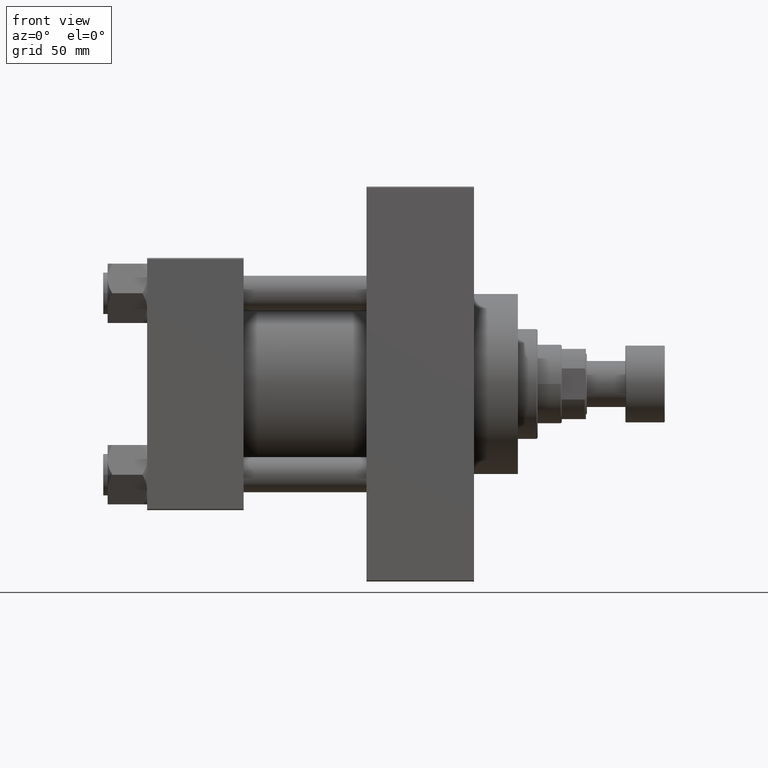
[diagram: clean part render]
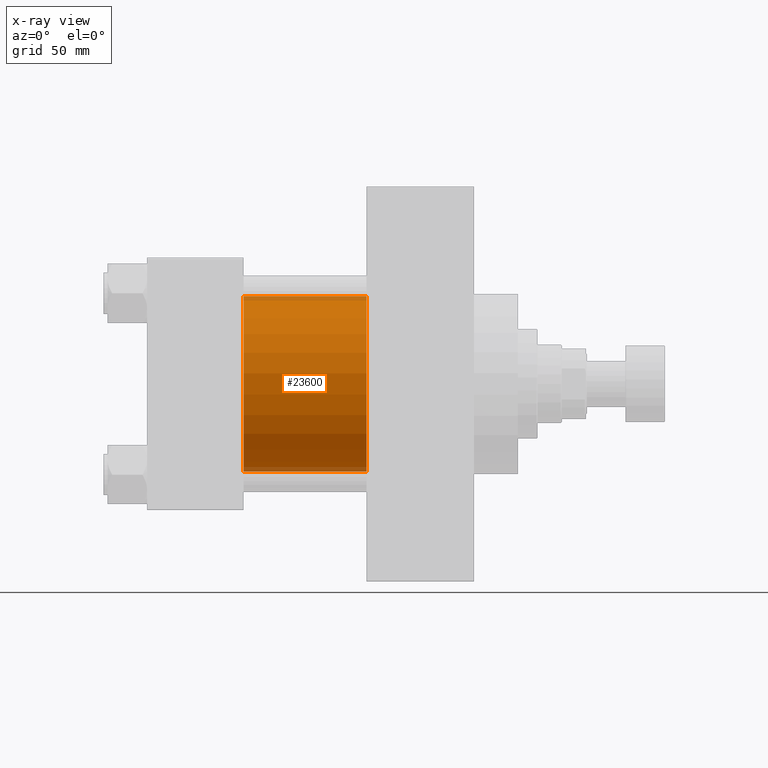
[diagram: x-ray — body ghosted, one internal face saturated and labeled with its STEP entity id]
A machine part, front view, then the same camera in x-ray: the body is ghosted and one INTERNAL B-rep face — a face not visible from any outside direction — is saturated and labeled: STEP entity #23600.
In plain terms, the highlighted cylindrical surface (partial cylindrical patch) has radius 40 mm, axis along (-1, -0, -0).
Its self-contained STEP definition (entity closure, byte-faithful):
#112 = CARTESIAN_POINT ( 'NONE',  ( 44.00000000000000000, 2.296501982624201990E-15, -40.00000000000000000 ) ) ;
#1426 = DIRECTION ( 'NONE',  ( 0.000000000000000000, 0.000000000000000000, -1.000000000000000000 ) ) ;
#2739 = AXIS2_PLACEMENT_3D ( 'NONE', #19206, #8962, #1426 ) ;
#5710 = ORIENTED_EDGE ( 'NONE', *, *, #14398, .T. ) ;
#5922 = CARTESIAN_POINT ( 'NONE',  ( 100.0000000000000000, 2.296501982624201990E-15, -40.00000000000000000 ) ) ;
#6772 = VERTEX_POINT ( 'NONE', #44596 ) ;
#7988 = VERTEX_POINT ( 'NONE', #22363 ) ;
#8962 = DIRECTION ( 'NONE',  ( 1.000000000000000000, 0.000000000000000000, 0.000000000000000000 ) ) ;
#11289 = CIRCLE ( 'NONE', #2739, 40.00000000000000000 ) ;
#12299 = CARTESIAN_POINT ( 'NONE',  ( 44.00000000000000000, -2.602085213965210642E-15, 0.000000000000000000 ) ) ;
#13151 = DIRECTION ( 'NONE',  ( -1.000000000000000000, -0.000000000000000000, -0.000000000000000000 ) ) ;
#14398 = EDGE_CURVE ( 'NONE', #45414, #23327, #20506, .T. ) ;
#16075 = FACE_OUTER_BOUND ( 'NONE', #40425, .T. ) ;
#17129 = EDGE_CURVE ( 'NONE', #7988, #23327, #37808, .T. ) ;
#19206 = CARTESIAN_POINT ( 'NONE',  ( 100.0000000000000000, -2.602085213965210642E-15, 0.000000000000000000 ) ) ;
#19218 = ORIENTED_EDGE ( 'NONE', *, *, #44653, .F. ) ;
#19717 = EDGE_CURVE ( 'NONE', #6772, #45414, #11289, .T. ) ;
#20370 = ORIENTED_EDGE ( 'NONE', *, *, #19717, .T. ) ;
#20506 = LINE ( 'NONE', #5922, #46288 ) ;
#20625 = AXIS2_PLACEMENT_3D ( 'NONE', #42121, #13151, #31383 ) ;
#20793 = CARTESIAN_POINT ( 'NONE',  ( 100.0000000000000000, -2.602085213965210642E-15, 40.00000000000000000 ) ) ;
#22363 = CARTESIAN_POINT ( 'NONE',  ( 44.00000000000000000, -2.602085213965210642E-15, 40.00000000000000000 ) ) ;
#23327 = VERTEX_POINT ( 'NONE', #112 ) ;
#23600 = ADVANCED_FACE ( 'NONE', ( #16075 ), #46505, .F. ) ;
#27124 = DIRECTION ( 'NONE',  ( 1.000000000000000000, 0.000000000000000000, 0.000000000000000000 ) ) ;
#31314 = CARTESIAN_POINT ( 'NONE',  ( 100.0000000000000000, 2.296501982624201990E-15, -40.00000000000000000 ) ) ;
#31383 = DIRECTION ( 'NONE',  ( 0.000000000000000000, 0.000000000000000000, 1.000000000000000000 ) ) ;
#32219 = LINE ( 'NONE', #20793, #47949 ) ;
#32459 = DIRECTION ( 'NONE',  ( -1.000000000000000000, -0.000000000000000000, -0.000000000000000000 ) ) ;
#32852 = ORIENTED_EDGE ( 'NONE', *, *, #17129, .F. ) ;
#35350 = DIRECTION ( 'NONE',  ( -1.000000000000000000, -0.000000000000000000, -0.000000000000000000 ) ) ;
#37808 = CIRCLE ( 'NONE', #45570, 40.00000000000000000 ) ;
#40425 = EDGE_LOOP ( 'NONE', ( #20370, #5710, #32852, #19218 ) ) ;
#42121 = CARTESIAN_POINT ( 'NONE',  ( 100.0000000000000000, -2.602085213965210642E-15, 0.000000000000000000 ) ) ;
#44596 = CARTESIAN_POINT ( 'NONE',  ( 100.0000000000000000, -2.602085213965210642E-15, 40.00000000000000000 ) ) ;
#44653 = EDGE_CURVE ( 'NONE', #6772, #7988, #32219, .T. ) ;
#45414 = VERTEX_POINT ( 'NONE', #31314 ) ;
#45570 = AXIS2_PLACEMENT_3D ( 'NONE', #12299, #27124, #46127 ) ;
#46127 = DIRECTION ( 'NONE',  ( 0.000000000000000000, 0.000000000000000000, -1.000000000000000000 ) ) ;
#46288 = VECTOR ( 'NONE', #35350, 1000.000000000000000 ) ;
#46505 = CYLINDRICAL_SURFACE ( 'NONE', #20625, 40.00000000000000000 ) ;
#47949 = VECTOR ( 'NONE', #32459, 1000.000000000000000 ) ;